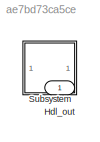
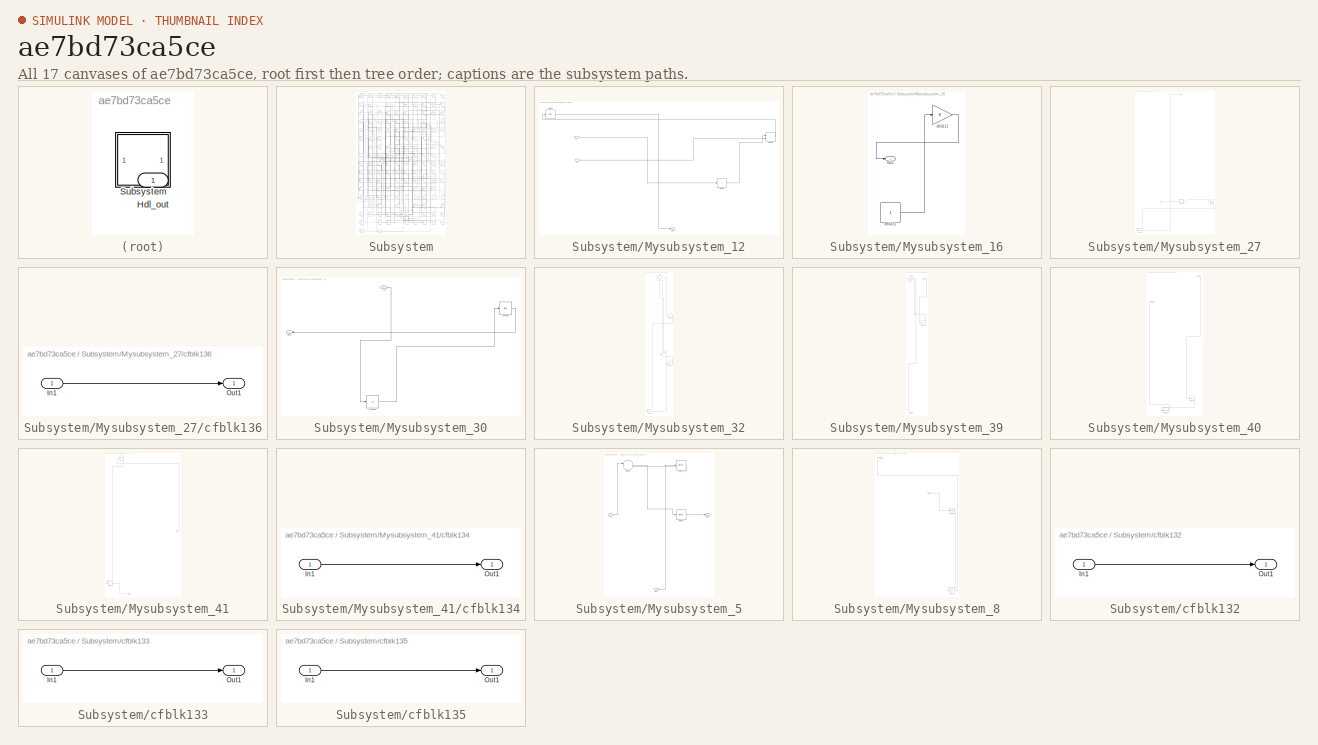
[diagram: thumbnail index - all 17 canvases of the model, root first then tree order]
MODEL slx_ae7bd73ca5ce
KIND model
CONFIG AbsTol = auto
CONFIG EnableMultiTasking = off
CONFIG FixedStep = auto
CONFIG MaxStep = auto
CONFIG MinStep = auto
CONFIG RelTol = 1e-3
CONFIG SampleTimeConstraint = Unconstrained
CONFIG SolverName = VariableStepAuto
CONFIG StartTime = 0.0
CONFIG StopTime = 10.0
BLOCK [Outport] Hdl_out
  OutDataTypeStr = uint8
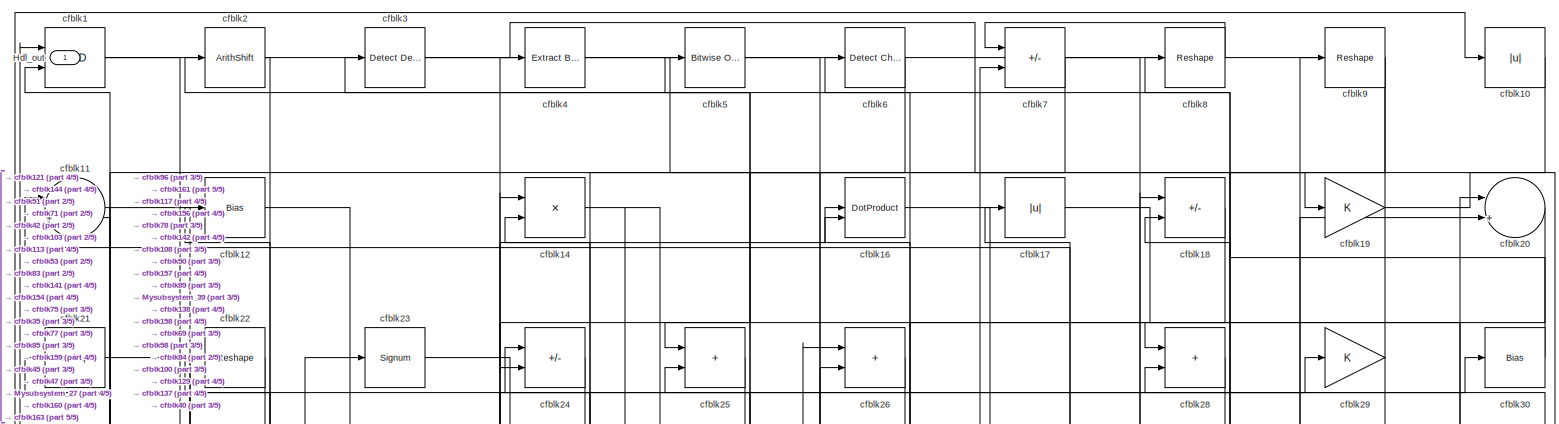
[diagram: Subsystem - part 1/5, full width, top band]
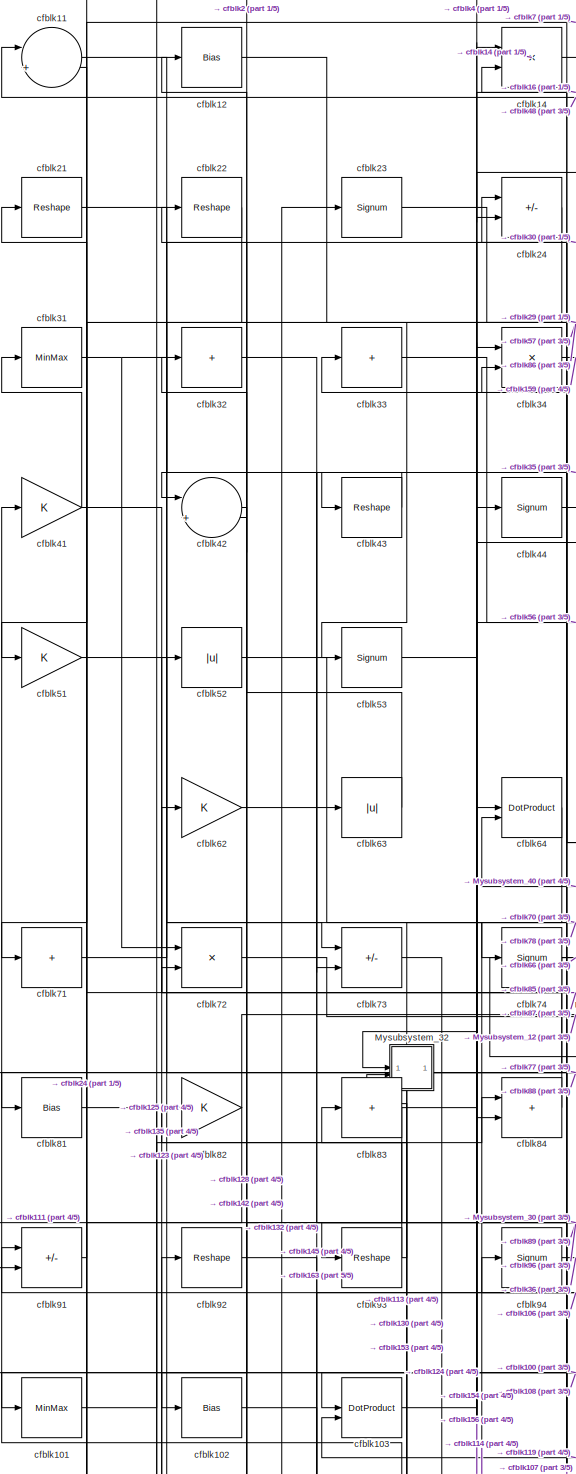
[diagram: Subsystem - part 2/5, middle left region]
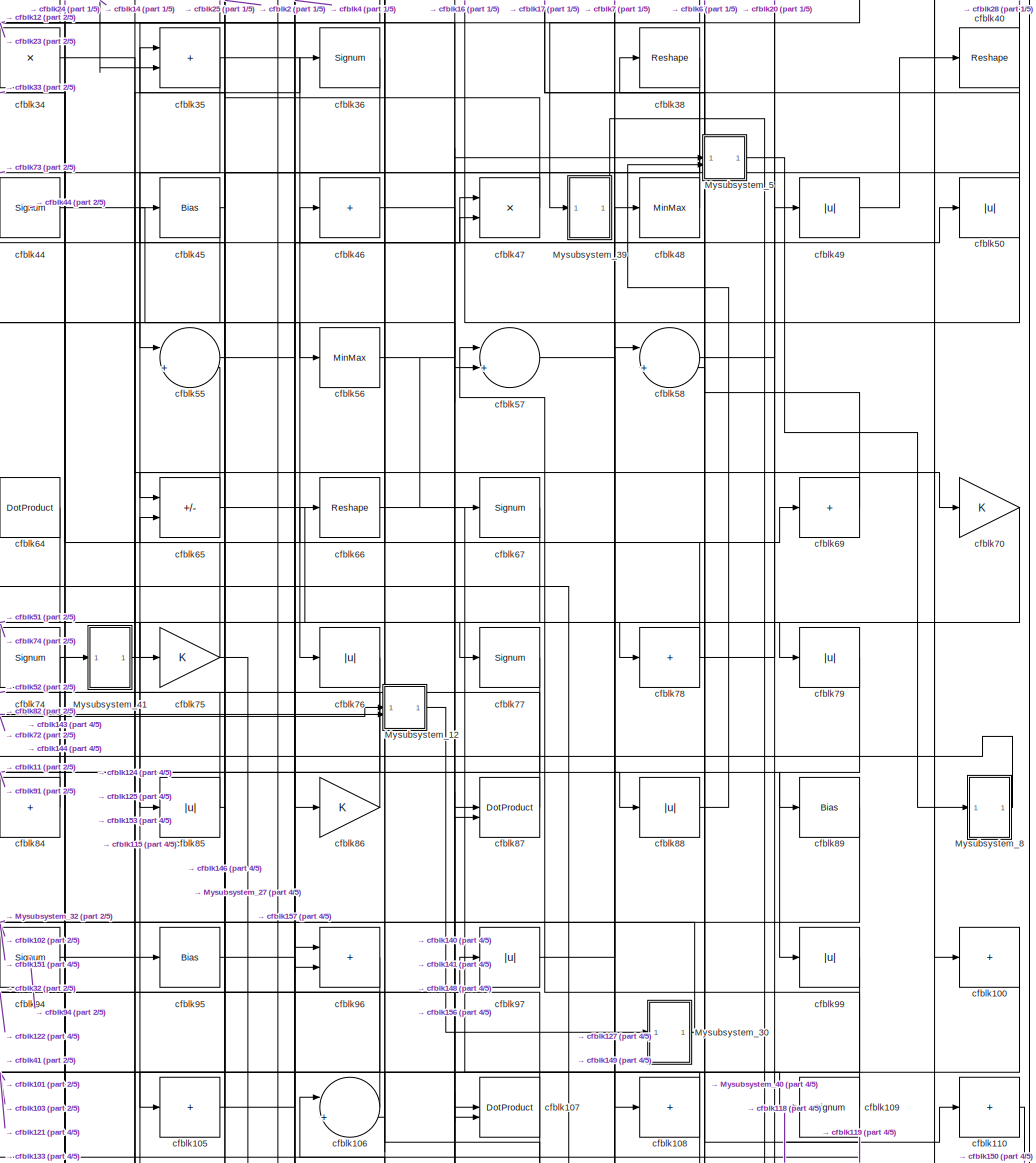
[diagram: Subsystem - part 3/5, central region]
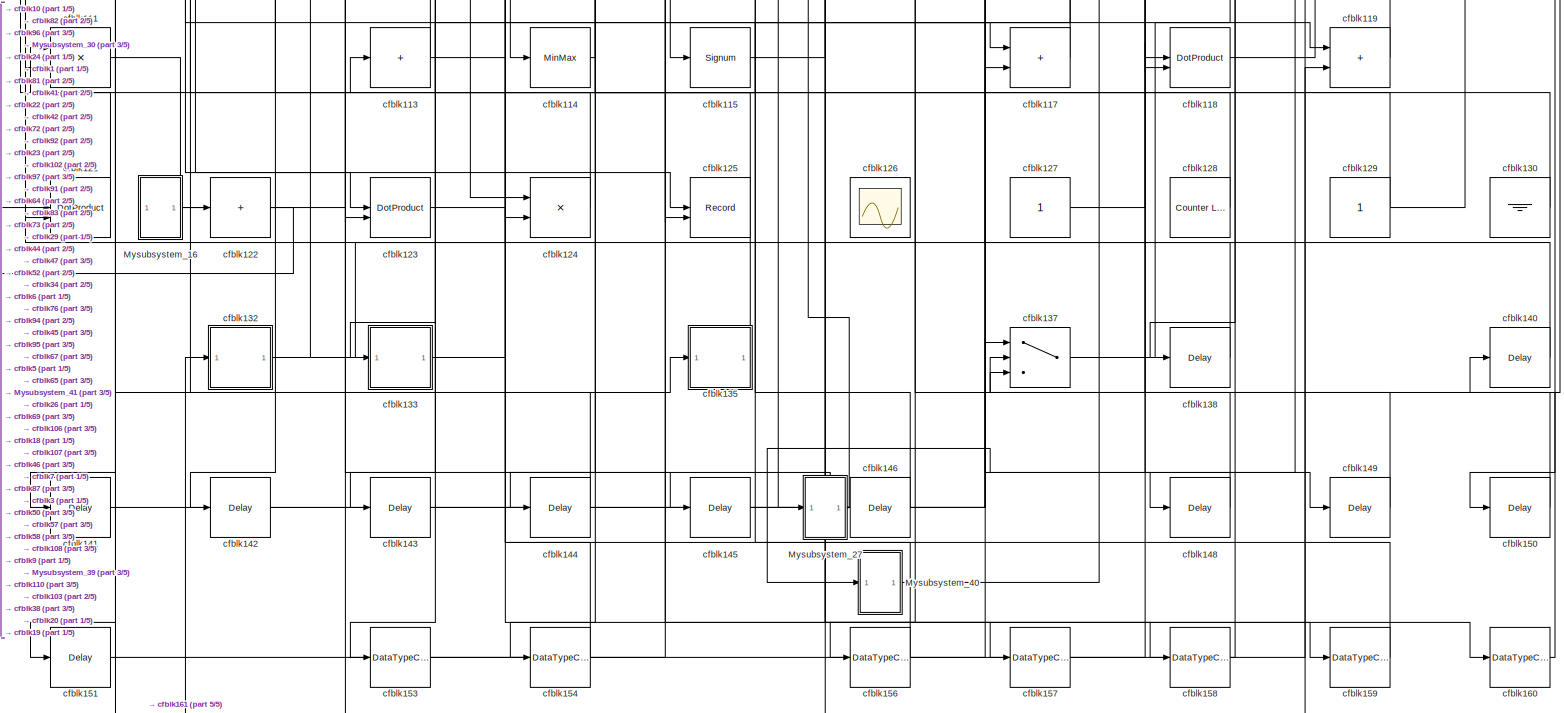
[diagram: Subsystem - part 4/5, full width, bottom band]
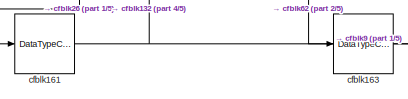
[diagram: Subsystem - part 5/5, bottom left region]
BLOCK [SubSystem] Subsystem
BLOCK [Outport] Subsystem/Hdl_out
  OutDataTypeStr = uint8
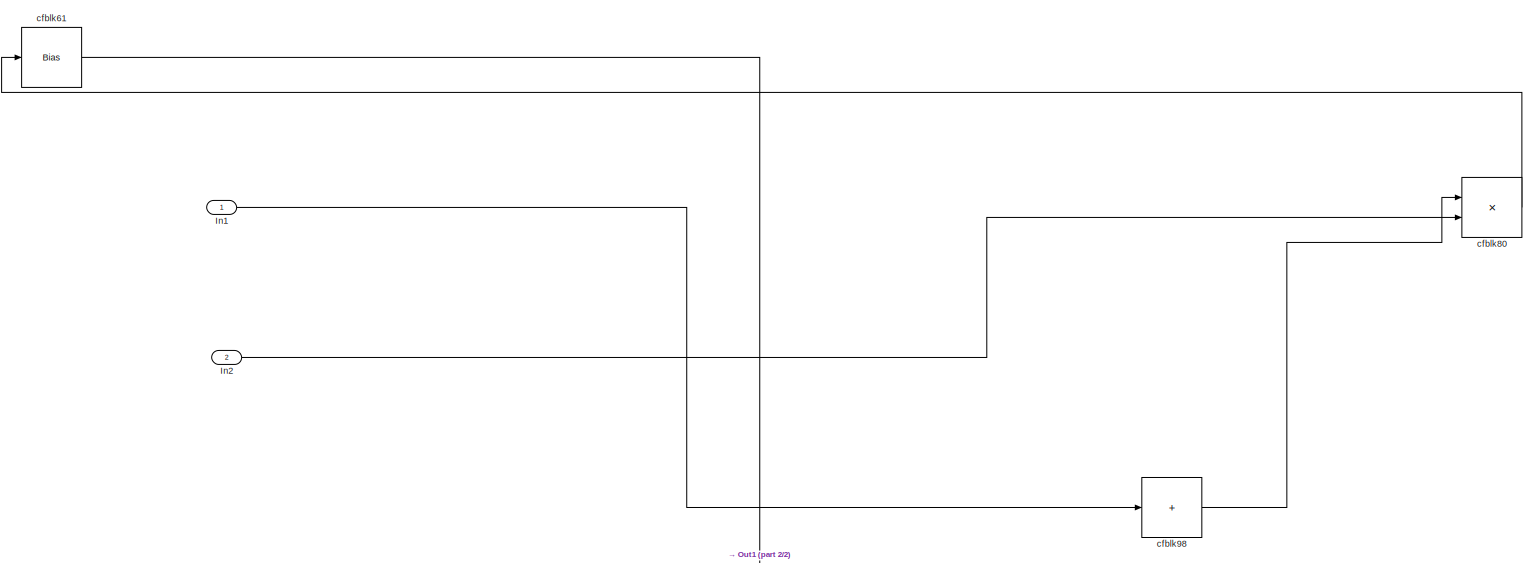
[diagram: Subsystem/Mysubsystem_12 - part 1/2, full width, middle band]
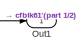
[diagram: Subsystem/Mysubsystem_12 - part 2/2, bottom center region]
BLOCK [SubSystem] Subsystem/Mysubsystem_12
  RTWFcnName = Mysubsystem_12
  RTWFcnNameOpts = User specified
  RTWFileNameOpts = Use function name
  RTWSystemCode = Reusable function
  TreatAsAtomicUnit = on
BLOCK [Inport] Subsystem/Mysubsystem_12/In1
BLOCK [Inport] Subsystem/Mysubsystem_12/In2
  Port = 2
BLOCK [Outport] Subsystem/Mysubsystem_12/Out1
BLOCK [Bias] Subsystem/Mysubsystem_12/cfblk61
  Bias = 0.0
  SaturateOnIntegerOverflow = off
BLOCK [Product] Subsystem/Mysubsystem_12/cfblk80
  Inputs = */
  RndMeth = Zero
  SaturateOnIntegerOverflow = on
BLOCK [Sum] Subsystem/Mysubsystem_12/cfblk98
  IconShape = rectangular
  Inputs = +
BLOCK [SubSystem] Subsystem/Mysubsystem_16
  RTWFcnName = Mysubsystem_16
  RTWFcnNameOpts = User specified
  RTWFileNameOpts = Use function name
  RTWSystemCode = Reusable function
  TreatAsAtomicUnit = on
BLOCK [Outport] Subsystem/Mysubsystem_16/Out1
BLOCK [Gain] Subsystem/Mysubsystem_16/cfblk112
BLOCK [Constant] Subsystem/Mysubsystem_16/cfblk131
  SampleTime = -1
BLOCK [SubSystem] Subsystem/Mysubsystem_27
  RTWFcnName = Mysubsystem_27
  RTWFcnNameOpts = User specified
  RTWFileNameOpts = Use function name
  RTWSystemCode = Reusable function
  TreatAsAtomicUnit = on
BLOCK [Inport] Subsystem/Mysubsystem_27/In1
BLOCK [Outport] Subsystem/Mysubsystem_27/Out1
BLOCK [SubSystem] Subsystem/Mysubsystem_27/cfblk136
  LibrarySourceBlock = hdlsllib/Ports &\nSubsystems/Subsystem
BLOCK [Inport] Subsystem/Mysubsystem_27/cfblk136/In1
BLOCK [Outport] Subsystem/Mysubsystem_27/cfblk136/Out1
BLOCK [Delay] Subsystem/Mysubsystem_27/cfblk139
  InputPortMap = u0
  SampleTime = 1
BLOCK [DataTypeConversion] Subsystem/Mysubsystem_27/cfblk162
  OutDataTypeStr = uint8
  RndMeth = Floor
  SaturateOnIntegerOverflow = off
BLOCK [SubSystem] Subsystem/Mysubsystem_30
  RTWFcnName = Mysubsystem_30
  RTWFcnNameOpts = User specified
  RTWFileNameOpts = Use function name
  RTWSystemCode = Reusable function
  TreatAsAtomicUnit = on
BLOCK [Inport] Subsystem/Mysubsystem_30/In1
BLOCK [Outport] Subsystem/Mysubsystem_30/Out1
BLOCK [Abs] Subsystem/Mysubsystem_30/cfblk116
  SaturateOnIntegerOverflow = off
BLOCK [Bias] Subsystem/Mysubsystem_30/cfblk90
  Bias = 0.0
  SaturateOnIntegerOverflow = off
BLOCK [SubSystem] Subsystem/Mysubsystem_32
  RTWFcnName = Mysubsystem_32
  RTWFcnNameOpts = User specified
  RTWFileNameOpts = Use function name
  RTWSystemCode = Reusable function
  TreatAsAtomicUnit = on
BLOCK [Inport] Subsystem/Mysubsystem_32/In1
BLOCK [Inport] Subsystem/Mysubsystem_32/In2
  Port = 2
BLOCK [Product] Subsystem/Mysubsystem_32/cfblk104
  Inputs = */
  RndMeth = Zero
  SaturateOnIntegerOverflow = on
BLOCK [Sum] Subsystem/Mysubsystem_32/cfblk13
  Inputs = |++
BLOCK [Delay] Subsystem/Mysubsystem_32/cfblk152
  InputPortMap = u0
  SampleTime = 1
BLOCK [Sum] Subsystem/Mysubsystem_32/cfblk54
  IconShape = rectangular
  Inputs = +
BLOCK [SubSystem] Subsystem/Mysubsystem_39
  RTWFcnName = Mysubsystem_39
  RTWFcnNameOpts = User specified
  RTWFileNameOpts = Use function name
  RTWSystemCode = Reusable function
  TreatAsAtomicUnit = on
BLOCK [Inport] Subsystem/Mysubsystem_39/In1
BLOCK [Outport] Subsystem/Mysubsystem_39/Out1
BLOCK [Gain] Subsystem/Mysubsystem_39/cfblk27
BLOCK [Abs] Subsystem/Mysubsystem_39/cfblk68
  SaturateOnIntegerOverflow = off
BLOCK [SubSystem] Subsystem/Mysubsystem_40
  RTWFcnName = Mysubsystem_40
  RTWFcnNameOpts = User specified
  RTWFileNameOpts = Use function name
  RTWSystemCode = Reusable function
  TreatAsAtomicUnit = on
BLOCK [Inport] Subsystem/Mysubsystem_40/In1
BLOCK [Outport] Subsystem/Mysubsystem_40/Out1
BLOCK [Delay] Subsystem/Mysubsystem_40/cfblk147
  InputPortMap = u0
  SampleTime = 1
BLOCK [DataTypeConversion] Subsystem/Mysubsystem_40/cfblk155
  OutDataTypeStr = uint8
  RndMeth = Floor
  SaturateOnIntegerOverflow = off
BLOCK [SubSystem] Subsystem/Mysubsystem_41
  RTWFcnName = Mysubsystem_41
  RTWFcnNameOpts = User specified
  RTWFileNameOpts = Use function name
  RTWSystemCode = Reusable function
  TreatAsAtomicUnit = on
BLOCK [Inport] Subsystem/Mysubsystem_41/In1
BLOCK [Outport] Subsystem/Mysubsystem_41/Out1
BLOCK [SubSystem] Subsystem/Mysubsystem_41/cfblk134
  LibrarySourceBlock = hdlsllib/Ports &\nSubsystems/Subsystem
BLOCK [Inport] Subsystem/Mysubsystem_41/cfblk134/In1
BLOCK [Outport] Subsystem/Mysubsystem_41/cfblk134/Out1
BLOCK [Signum] Subsystem/Mysubsystem_41/cfblk15
BLOCK [SubSystem] Subsystem/Mysubsystem_5
  RTWFcnName = Mysubsystem_5
  RTWFcnNameOpts = User specified
  RTWFileNameOpts = Use function name
  RTWSystemCode = Reusable function
  TreatAsAtomicUnit = on
BLOCK [Inport] Subsystem/Mysubsystem_5/In1
BLOCK [Inport] Subsystem/Mysubsystem_5/In2
  Port = 2
BLOCK [Outport] Subsystem/Mysubsystem_5/Out1
BLOCK [Sum] Subsystem/Mysubsystem_5/cfblk37
  Inputs = |++
BLOCK [Signum] Subsystem/Mysubsystem_5/cfblk39
BLOCK [MinMax] Subsystem/Mysubsystem_5/cfblk59
BLOCK [SubSystem] Subsystem/Mysubsystem_8
  RTWFcnName = Mysubsystem_8
  RTWFcnNameOpts = User specified
  RTWFileNameOpts = Use function name
  RTWSystemCode = Reusable function
  TreatAsAtomicUnit = on
BLOCK [Inport] Subsystem/Mysubsystem_8/In1
BLOCK [Outport] Subsystem/Mysubsystem_8/Out1
BLOCK [Abs] Subsystem/Mysubsystem_8/cfblk120
  SaturateOnIntegerOverflow = off
BLOCK [MinMax] Subsystem/Mysubsystem_8/cfblk60
BLOCK [Logic] Subsystem/cfblk1
  AllPortsSameDT = off
  OutDataTypeStr = boolean
BLOCK [Abs] Subsystem/cfblk10
  OutDataTypeStr = uint8
  SaturateOnIntegerOverflow = off
BLOCK [Sum] Subsystem/cfblk100
  IconShape = rectangular
  Inputs = +
  OutDataTypeStr = uint8
BLOCK [MinMax] Subsystem/cfblk101
  OutDataTypeStr = uint8
BLOCK [Bias] Subsystem/cfblk102
  Bias = 0.0
  SaturateOnIntegerOverflow = off
BLOCK [DotProduct] Subsystem/cfblk103
  OutDataTypeStr = uint8
BLOCK [Sum] Subsystem/cfblk105
  IconShape = rectangular
  Inputs = +
  OutDataTypeStr = uint8
BLOCK [Sum] Subsystem/cfblk106
  Inputs = |++
  OutDataTypeStr = uint8
BLOCK [DotProduct] Subsystem/cfblk107
  OutDataTypeStr = uint8
BLOCK [Sum] Subsystem/cfblk108
  IconShape = rectangular
  Inputs = +
  OutDataTypeStr = uint8
BLOCK [Signum] Subsystem/cfblk109
BLOCK [Sum] Subsystem/cfblk11
  Inputs = |++
  OutDataTypeStr = uint8
BLOCK [Sum] Subsystem/cfblk110
  IconShape = rectangular
  Inputs = +
  OutDataTypeStr = uint8
BLOCK [Product] Subsystem/cfblk111
  Inputs = */
  OutDataTypeStr = uint8
  RndMeth = Zero
  SaturateOnIntegerOverflow = on
BLOCK [Sum] Subsystem/cfblk113
  IconShape = rectangular
  Inputs = +
  OutDataTypeStr = uint8
BLOCK [MinMax] Subsystem/cfblk114
  OutDataTypeStr = uint8
BLOCK [Signum] Subsystem/cfblk115
BLOCK [Sum] Subsystem/cfblk117
  IconShape = rectangular
  OutDataTypeStr = uint8
BLOCK [DotProduct] Subsystem/cfblk118
  OutDataTypeStr = uint8
BLOCK [Sum] Subsystem/cfblk119
  IconShape = rectangular
  OutDataTypeStr = uint8
BLOCK [Bias] Subsystem/cfblk12
  Bias = 0.0
  SaturateOnIntegerOverflow = off
BLOCK [DotProduct] Subsystem/cfblk121
  OutDataTypeStr = uint8
BLOCK [Sum] Subsystem/cfblk122
  IconShape = rectangular
  Inputs = +
  OutDataTypeStr = uint8
BLOCK [DotProduct] Subsystem/cfblk123
  OutDataTypeStr = uint8
BLOCK [Product] Subsystem/cfblk124
  Inputs = */
  OutDataTypeStr = uint8
  RndMeth = Zero
  SaturateOnIntegerOverflow = on
BLOCK [Record] Subsystem/cfblk125
  CompatibilityTag = XY
  FileSettingsInternal = {"entries":[{"content":{"excelSettings":{"content":{},"type":"Streamout.ExcelSettings"}},"type":"Streamout.FileSettingStorage","uuid":""}],"packageUris":["http:\/\/schema.mathworks.com\/mf0\/streamout_blocks\/R2020a"],"version":"1.0"}
  Layout = [1 1]
  SignalsInternal = {"entries":[{"content":{"signals":[{"content":{"blockPath":[],"dimensions":[1],"domain":"","lineColor":"#a2142f","plots":[1],"port":1,"signalID":36454,"signalName":"cfblk81"},"type":"RecordBlkView.Signal","uuid":""},{"content":{"blockPath":[],"dimensions":[1],"domain":"","lineColor":"#139fff","plots":[1],"port":2,"signalID":36457,"signalName":"cfblk45"},"type":"RecordBlkView.Signal","uuid":""}]},"...<+142ch>
  VisualizationBindings = {"xyplotplugin":{"info":[{"series":[{"bindingParametersList":[{"parameter":"X-Axis","signalID":36454,"signalName":"cfblk81"},{"parameter":"Y-Axis","signalID":36457,"signalName":"cfblk45"}],"seriesID":2030}],"subplotID":1}]}}
  st = -1
BLOCK [Scope] Subsystem/cfblk126
  Floating = on
  NumInputPorts = 1
  ScopeSpecificationString = Simulink.scopes.TimeScopeBlockCfg('CurrentConfiguration', extmgr.ConfigurationSet(extmgr.Configuration('Core','General UI',true,'FigureColor',[0.156862745098039 0.156862745098039 0.156862745098039]),extmgr.Configuration('Core','Source UI',true),extmgr.Configuration('Sources','WiredSimulink',true,'DataLoggingSaveFormat','StructureWithTime','DataLoggingLimitDataPoints',true,'DataLoggingDecimation','...<+2674ch>
BLOCK [Constant] Subsystem/cfblk127
  OutDataTypeStr = uint8
  SampleTime = -1
BLOCK [Reference] Subsystem/cfblk128  REF=hdlsllib/Sources/Counter
Limited
  SourceBlock = hdlsllib/Sources/Counter\nLimited
  SourceType = Counter Limited
BLOCK [Constant] Subsystem/cfblk129
  OutDataTypeStr = uint8
  SampleTime = -1
BLOCK [Ground] Subsystem/cfblk130
BLOCK [SubSystem] Subsystem/cfblk132
  LibrarySourceBlock = hdlsllib/Ports &\nSubsystems/Subsystem
BLOCK [Inport] Subsystem/cfblk132/In1
BLOCK [Outport] Subsystem/cfblk132/Out1
BLOCK [SubSystem] Subsystem/cfblk133
  LibrarySourceBlock = hdlsllib/Ports &\nSubsystems/Subsystem
BLOCK [Inport] Subsystem/cfblk133/In1
BLOCK [Outport] Subsystem/cfblk133/Out1
BLOCK [SubSystem] Subsystem/cfblk135
  LibrarySourceBlock = hdlsllib/Ports &\nSubsystems/Subsystem
BLOCK [Inport] Subsystem/cfblk135/In1
BLOCK [Outport] Subsystem/cfblk135/Out1
BLOCK [Switch] Subsystem/cfblk137
  InputSameDT = off
  OutDataTypeStr = uint8
  SaturateOnIntegerOverflow = off
BLOCK [Delay] Subsystem/cfblk138
  InputPortMap = u0
  SampleTime = 1
BLOCK [Product] Subsystem/cfblk14
  Inputs = */
  OutDataTypeStr = uint8
  RndMeth = Zero
  SaturateOnIntegerOverflow = on
BLOCK [Delay] Subsystem/cfblk140
  InputPortMap = u0
  SampleTime = 1
BLOCK [Delay] Subsystem/cfblk141
  InputPortMap = u0
  SampleTime = 1
BLOCK [Delay] Subsystem/cfblk142
  InputPortMap = u0
  SampleTime = 1
BLOCK [Delay] Subsystem/cfblk143
  InputPortMap = u0
  SampleTime = 1
BLOCK [Delay] Subsystem/cfblk144
  InputPortMap = u0
  SampleTime = 1
BLOCK [Delay] Subsystem/cfblk145
  InputPortMap = u0
  SampleTime = 1
BLOCK [Delay] Subsystem/cfblk146
  InputPortMap = u0
  SampleTime = 1
BLOCK [Delay] Subsystem/cfblk148
  InputPortMap = u0
  SampleTime = 1
BLOCK [Delay] Subsystem/cfblk149
  InputPortMap = u0
  SampleTime = 1
BLOCK [Delay] Subsystem/cfblk150
  InputPortMap = u0
  SampleTime = 1
BLOCK [Delay] Subsystem/cfblk151
  InputPortMap = u0
  SampleTime = 1
BLOCK [DataTypeConversion] Subsystem/cfblk153
  OutDataTypeStr = uint8
  RndMeth = Floor
  SaturateOnIntegerOverflow = off
BLOCK [DataTypeConversion] Subsystem/cfblk154
  OutDataTypeStr = uint8
  RndMeth = Floor
  SaturateOnIntegerOverflow = off
BLOCK [DataTypeConversion] Subsystem/cfblk156
  OutDataTypeStr = uint8
  RndMeth = Floor
  SaturateOnIntegerOverflow = off
BLOCK [DataTypeConversion] Subsystem/cfblk157
  OutDataTypeStr = uint8
  RndMeth = Floor
  SaturateOnIntegerOverflow = off
BLOCK [DataTypeConversion] Subsystem/cfblk158
  OutDataTypeStr = uint8
  RndMeth = Floor
  SaturateOnIntegerOverflow = off
BLOCK [DataTypeConversion] Subsystem/cfblk159
  OutDataTypeStr = uint8
  RndMeth = Floor
  SaturateOnIntegerOverflow = off
BLOCK [DotProduct] Subsystem/cfblk16
  OutDataTypeStr = uint8
BLOCK [DataTypeConversion] Subsystem/cfblk160
  OutDataTypeStr = uint8
  RndMeth = Floor
  SaturateOnIntegerOverflow = off
BLOCK [DataTypeConversion] Subsystem/cfblk161
  OutDataTypeStr = uint8
  RndMeth = Floor
  SaturateOnIntegerOverflow = off
BLOCK [DataTypeConversion] Subsystem/cfblk163
  OutDataTypeStr = uint8
  RndMeth = Floor
  SaturateOnIntegerOverflow = off
BLOCK [Abs] Subsystem/cfblk17
  OutDataTypeStr = uint8
  SaturateOnIntegerOverflow = off
BLOCK [Sum] Subsystem/cfblk18
  IconShape = rectangular
  Inputs = +-
  OutDataTypeStr = uint8
BLOCK [Gain] Subsystem/cfblk19
  OutDataTypeStr = uint8
BLOCK [ArithShift] Subsystem/cfblk2
  BitShiftNumber = 8
  InputPortMap = u0
BLOCK [Sum] Subsystem/cfblk20
  Inputs = |++
  OutDataTypeStr = uint8
BLOCK [Reshape] Subsystem/cfblk21
BLOCK [Reshape] Subsystem/cfblk22
BLOCK [Signum] Subsystem/cfblk23
BLOCK [Sum] Subsystem/cfblk24
  IconShape = rectangular
  Inputs = +-
  OutDataTypeStr = uint8
BLOCK [Sum] Subsystem/cfblk25
  IconShape = rectangular
  OutDataTypeStr = uint8
BLOCK [Sum] Subsystem/cfblk26
  IconShape = rectangular
  OutDataTypeStr = uint8
BLOCK [Sum] Subsystem/cfblk28
  IconShape = rectangular
  OutDataTypeStr = uint8
BLOCK [Gain] Subsystem/cfblk29
  OutDataTypeStr = uint8
BLOCK [Reference] Subsystem/cfblk3  REF=simulink/Logic and Bit
Operations/Detect
Decrease
  LibrarySourceBlock = hdlsllib/Logic and Bit\nOperations/Detect\nDecrease
  SourceBlock = simulink/Logic and Bit\nOperations/Detect\nDecrease
  SourceType = Detect Decrease
BLOCK [Bias] Subsystem/cfblk30
  Bias = 0.0
  SaturateOnIntegerOverflow = off
BLOCK [MinMax] Subsystem/cfblk31
  OutDataTypeStr = uint8
BLOCK [Sum] Subsystem/cfblk32
  IconShape = rectangular
  Inputs = +
  OutDataTypeStr = uint8
BLOCK [Sum] Subsystem/cfblk33
  IconShape = rectangular
  Inputs = +
  OutDataTypeStr = uint8
BLOCK [Product] Subsystem/cfblk34
  Inputs = */
  OutDataTypeStr = uint8
  RndMeth = Zero
  SaturateOnIntegerOverflow = on
BLOCK [Sum] Subsystem/cfblk35
  IconShape = rectangular
  OutDataTypeStr = uint8
BLOCK [Signum] Subsystem/cfblk36
BLOCK [Reshape] Subsystem/cfblk38
BLOCK [Reference] Subsystem/cfblk4  REF=simulink/Logic and Bit
Operations/Extract Bits
  LibrarySourceBlock = hdlsllib/Logic and Bit\nOperations/Extract Bits
  SourceBlock = simulink/Logic and Bit\nOperations/Extract Bits
  SourceType = Extract Bits
BLOCK [Reshape] Subsystem/cfblk40
BLOCK [Gain] Subsystem/cfblk41
  OutDataTypeStr = uint8
BLOCK [Sum] Subsystem/cfblk42
  Inputs = |++
  OutDataTypeStr = uint8
BLOCK [Reshape] Subsystem/cfblk43
BLOCK [Signum] Subsystem/cfblk44
BLOCK [Bias] Subsystem/cfblk45
  Bias = 0.0
  SaturateOnIntegerOverflow = off
BLOCK [Sum] Subsystem/cfblk46
  IconShape = rectangular
  Inputs = +
  OutDataTypeStr = uint8
BLOCK [Product] Subsystem/cfblk47
  Inputs = */
  OutDataTypeStr = uint8
  RndMeth = Zero
  SaturateOnIntegerOverflow = on
BLOCK [MinMax] Subsystem/cfblk48
  OutDataTypeStr = uint8
BLOCK [Abs] Subsystem/cfblk49
  OutDataTypeStr = uint8
  SaturateOnIntegerOverflow = off
BLOCK [Reference] Subsystem/cfblk5  REF=simulink/Logic and Bit
Operations/Bitwise
Operator
  LibrarySourceBlock = hdlsllib/Logic and Bit\nOperations/Bitwise\nOperator
  SourceBlock = simulink/Logic and Bit\nOperations/Bitwise\nOperator
  SourceType = Bitwise Operator
BLOCK [Abs] Subsystem/cfblk50
  OutDataTypeStr = uint8
  SaturateOnIntegerOverflow = off
BLOCK [Gain] Subsystem/cfblk51
  OutDataTypeStr = uint8
BLOCK [Abs] Subsystem/cfblk52
  OutDataTypeStr = uint8
  SaturateOnIntegerOverflow = off
BLOCK [Signum] Subsystem/cfblk53
BLOCK [Sum] Subsystem/cfblk55
  Inputs = |++
  OutDataTypeStr = uint8
BLOCK [MinMax] Subsystem/cfblk56
  OutDataTypeStr = uint8
BLOCK [Sum] Subsystem/cfblk57
  Inputs = |++
  OutDataTypeStr = uint8
BLOCK [Sum] Subsystem/cfblk58
  Inputs = |++
  OutDataTypeStr = uint8
BLOCK [Reference] Subsystem/cfblk6  REF=simulink/Logic and Bit
Operations/Detect
Change
  LibrarySourceBlock = hdlsllib/Logic and Bit\nOperations/Detect\nChange
  SourceBlock = simulink/Logic and Bit\nOperations/Detect\nChange
  SourceType = Detect Change
BLOCK [Gain] Subsystem/cfblk62
  OutDataTypeStr = uint8
BLOCK [Abs] Subsystem/cfblk63
  OutDataTypeStr = uint8
  SaturateOnIntegerOverflow = off
BLOCK [DotProduct] Subsystem/cfblk64
  OutDataTypeStr = uint8
BLOCK [Sum] Subsystem/cfblk65
  IconShape = rectangular
  Inputs = +-
  OutDataTypeStr = uint8
BLOCK [Reshape] Subsystem/cfblk66
BLOCK [Signum] Subsystem/cfblk67
BLOCK [Sum] Subsystem/cfblk69
  IconShape = rectangular
  Inputs = +
  OutDataTypeStr = uint8
BLOCK [Sum] Subsystem/cfblk7
  IconShape = rectangular
  Inputs = +-
  OutDataTypeStr = uint8
BLOCK [Gain] Subsystem/cfblk70
  OutDataTypeStr = uint8
BLOCK [Sum] Subsystem/cfblk71
  IconShape = rectangular
  Inputs = +
  OutDataTypeStr = uint8
BLOCK [Product] Subsystem/cfblk72
  Inputs = */
  OutDataTypeStr = uint8
  RndMeth = Zero
  SaturateOnIntegerOverflow = on
BLOCK [Sum] Subsystem/cfblk73
  IconShape = rectangular
  Inputs = +-
  OutDataTypeStr = uint8
BLOCK [Signum] Subsystem/cfblk74
BLOCK [Gain] Subsystem/cfblk75
  OutDataTypeStr = uint8
BLOCK [Abs] Subsystem/cfblk76
  OutDataTypeStr = uint8
  SaturateOnIntegerOverflow = off
BLOCK [Signum] Subsystem/cfblk77
BLOCK [Sum] Subsystem/cfblk78
  IconShape = rectangular
  Inputs = +
  OutDataTypeStr = uint8
BLOCK [Abs] Subsystem/cfblk79
  OutDataTypeStr = uint8
  SaturateOnIntegerOverflow = off
BLOCK [Reshape] Subsystem/cfblk8
BLOCK [Bias] Subsystem/cfblk81
  Bias = 0.0
  SaturateOnIntegerOverflow = off
BLOCK [Gain] Subsystem/cfblk82
  OutDataTypeStr = uint8
BLOCK [Sum] Subsystem/cfblk83
  IconShape = rectangular
  Inputs = +
  OutDataTypeStr = uint8
BLOCK [Sum] Subsystem/cfblk84
  IconShape = rectangular
  OutDataTypeStr = uint8
BLOCK [Abs] Subsystem/cfblk85
  OutDataTypeStr = uint8
  SaturateOnIntegerOverflow = off
BLOCK [Gain] Subsystem/cfblk86
  OutDataTypeStr = uint8
BLOCK [DotProduct] Subsystem/cfblk87
  OutDataTypeStr = uint8
BLOCK [Abs] Subsystem/cfblk88
  OutDataTypeStr = uint8
  SaturateOnIntegerOverflow = off
BLOCK [Bias] Subsystem/cfblk89
  Bias = 0.0
  SaturateOnIntegerOverflow = off
BLOCK [Reshape] Subsystem/cfblk9
BLOCK [Sum] Subsystem/cfblk91
  IconShape = rectangular
  Inputs = +-
  OutDataTypeStr = uint8
BLOCK [Reshape] Subsystem/cfblk92
BLOCK [Reshape] Subsystem/cfblk93
BLOCK [Signum] Subsystem/cfblk94
BLOCK [Bias] Subsystem/cfblk95
  Bias = 0.0
  SaturateOnIntegerOverflow = off
BLOCK [Sum] Subsystem/cfblk96
  IconShape = rectangular
  OutDataTypeStr = uint8
BLOCK [Abs] Subsystem/cfblk97
  OutDataTypeStr = uint8
  SaturateOnIntegerOverflow = off
BLOCK [Abs] Subsystem/cfblk99
  OutDataTypeStr = uint8
  SaturateOnIntegerOverflow = off
LINE Subsystem/Mysubsystem_12/In1:1 -> Subsystem/Mysubsystem_12/cfblk98:1
LINE Subsystem/Mysubsystem_12/In2:1 -> Subsystem/Mysubsystem_12/cfblk80:2
LINE Subsystem/Mysubsystem_12/cfblk61:1 -> Subsystem/Mysubsystem_12/Out1:1
LINE Subsystem/Mysubsystem_12/cfblk80:1 -> Subsystem/Mysubsystem_12/cfblk61:1
LINE Subsystem/Mysubsystem_12/cfblk98:1 -> Subsystem/Mysubsystem_12/cfblk80:1
LINE Subsystem/Mysubsystem_12:1 -> Subsystem/Mysubsystem_30:1
LINE Subsystem/Mysubsystem_16/cfblk112:1 -> Subsystem/Mysubsystem_16/Out1:1
LINE Subsystem/Mysubsystem_16/cfblk131:1 -> Subsystem/Mysubsystem_16/cfblk112:1
LINE Subsystem/Mysubsystem_16:1 -> Subsystem/cfblk121:1
LINE Subsystem/Mysubsystem_27/In1:1 -> Subsystem/Mysubsystem_27/cfblk136:1
LINE Subsystem/Mysubsystem_27/cfblk136/In1:1 -> Subsystem/Mysubsystem_27/cfblk136/Out1:1
LINE Subsystem/Mysubsystem_27/cfblk136:1 -> Subsystem/Mysubsystem_27/cfblk139:1
LINE Subsystem/Mysubsystem_27/cfblk139:1 -> Subsystem/Mysubsystem_27/cfblk162:1
LINE Subsystem/Mysubsystem_27/cfblk162:1 -> Subsystem/Mysubsystem_27/Out1:1
LINE Subsystem/Mysubsystem_27:1 -> Subsystem/cfblk26:1
LINE Subsystem/Mysubsystem_30/In1:1 -> Subsystem/Mysubsystem_30/cfblk116:1
LINE Subsystem/Mysubsystem_30/cfblk116:1 -> Subsystem/Mysubsystem_30/cfblk90:1
LINE Subsystem/Mysubsystem_30/cfblk90:1 -> Subsystem/Mysubsystem_30/Out1:1
NET Subsystem/Mysubsystem_30:1 -> Subsystem/Mysubsystem_32:1, Subsystem/cfblk151:1
LINE Subsystem/Mysubsystem_32/In1:1 -> Subsystem/Mysubsystem_32/cfblk104:2
LINE Subsystem/Mysubsystem_32/In2:1 -> Subsystem/Mysubsystem_32/cfblk13:2
LINE Subsystem/Mysubsystem_32/cfblk104:1 -> Subsystem/Mysubsystem_32/cfblk13:1
LINE Subsystem/Mysubsystem_32/cfblk13:1 -> Subsystem/Mysubsystem_32/cfblk54:1
LINE Subsystem/Mysubsystem_32/cfblk152:1 -> Subsystem/Mysubsystem_32/cfblk104:1
LINE Subsystem/Mysubsystem_32/cfblk54:1 -> Subsystem/Mysubsystem_32/cfblk152:1
LINE Subsystem/Mysubsystem_39/In1:1 -> Subsystem/Mysubsystem_39/cfblk68:1
LINE Subsystem/Mysubsystem_39/cfblk27:1 -> Subsystem/Mysubsystem_39/Out1:1
LINE Subsystem/Mysubsystem_39/cfblk68:1 -> Subsystem/Mysubsystem_39/cfblk27:1
LINE Subsystem/Mysubsystem_39:1 -> Subsystem/Mysubsystem_40:1
LINE Subsystem/Mysubsystem_40/In1:1 -> Subsystem/Mysubsystem_40/cfblk147:1
LINE Subsystem/Mysubsystem_40/cfblk147:1 -> Subsystem/Mysubsystem_40/cfblk155:1
LINE Subsystem/Mysubsystem_40/cfblk155:1 -> Subsystem/Mysubsystem_40/Out1:1
LINE Subsystem/Mysubsystem_40:1 -> Subsystem/cfblk64:2
LINE Subsystem/Mysubsystem_41/In1:1 -> Subsystem/Mysubsystem_41/cfblk15:1
LINE Subsystem/Mysubsystem_41/cfblk134/In1:1 -> Subsystem/Mysubsystem_41/cfblk134/Out1:1
LINE Subsystem/Mysubsystem_41/cfblk134:1 -> Subsystem/Mysubsystem_41/Out1:1
LINE Subsystem/Mysubsystem_41/cfblk15:1 -> Subsystem/Mysubsystem_41/cfblk134:1
LINE Subsystem/Mysubsystem_41:1 -> Subsystem/Mysubsystem_27:1
LINE Subsystem/Mysubsystem_5/In1:1 -> Subsystem/Mysubsystem_5/cfblk37:1
LINE Subsystem/Mysubsystem_5/In2:1 -> Subsystem/Mysubsystem_5/cfblk39:1
LINE Subsystem/Mysubsystem_5/cfblk37:1 -> Subsystem/Mysubsystem_5/cfblk59:1
LINE Subsystem/Mysubsystem_5/cfblk39:1 -> Subsystem/Mysubsystem_5/cfblk37:2
LINE Subsystem/Mysubsystem_5/cfblk59:1 -> Subsystem/Mysubsystem_5/Out1:1
LINE Subsystem/Mysubsystem_5:1 -> Subsystem/Mysubsystem_8:1
LINE Subsystem/Mysubsystem_8/In1:1 -> Subsystem/Mysubsystem_8/cfblk60:1
LINE Subsystem/Mysubsystem_8/cfblk120:1 -> Subsystem/Mysubsystem_8/Out1:1
LINE Subsystem/Mysubsystem_8/cfblk60:1 -> Subsystem/Mysubsystem_8/cfblk120:1
LINE Subsystem/Mysubsystem_8:1 -> Subsystem/Mysubsystem_41:1
LINE Subsystem/cfblk100:1 -> Subsystem/cfblk101:1
LINE Subsystem/cfblk101:1 -> Subsystem/cfblk84:1
LINE Subsystem/cfblk102:1 -> Subsystem/cfblk123:2
LINE Subsystem/cfblk103:1 -> Subsystem/cfblk4:1
NET Subsystem/cfblk105:1 -> Subsystem/cfblk35:1, Subsystem/cfblk47:2
LINE Subsystem/cfblk106:1 -> Subsystem/cfblk41:1
NET Subsystem/cfblk107:1 -> Subsystem/cfblk33:1, Subsystem/cfblk45:1
NET Subsystem/cfblk108:1 -> Subsystem/cfblk103:1, Subsystem/cfblk133:1
NET Subsystem/cfblk109:1 -> Subsystem/cfblk57:1, Subsystem/cfblk58:2
LINE Subsystem/cfblk10:1 -> Subsystem/cfblk25:1
LINE Subsystem/cfblk110:1 -> Subsystem/cfblk150:1
LINE Subsystem/cfblk111:1 -> Subsystem/cfblk122:1
NET Subsystem/cfblk113:1 -> Subsystem/cfblk158:1, Subsystem/cfblk29:1, Subsystem/cfblk91:1
LINE Subsystem/cfblk114:1 -> Subsystem/cfblk34:2
LINE Subsystem/cfblk115:1 -> Subsystem/cfblk69:1
LINE Subsystem/cfblk117:1 -> Subsystem/cfblk3:1
LINE Subsystem/cfblk118:1 -> Subsystem/cfblk110:1
NET Subsystem/cfblk119:1 -> Subsystem/cfblk103:2, Subsystem/cfblk38:1
NET Subsystem/cfblk11:1 -> Subsystem/cfblk71:1, Subsystem/cfblk88:1
LINE Subsystem/cfblk121:1 -> Subsystem/cfblk10:1
LINE Subsystem/cfblk122:1 -> Subsystem/cfblk97:1
LINE Subsystem/cfblk123:1 -> Subsystem/cfblk146:1
NET Subsystem/cfblk124:1 -> Subsystem/cfblk22:1, Subsystem/cfblk92:1
LINE Subsystem/cfblk127:1 -> Subsystem/cfblk58:1
NET Subsystem/cfblk128:1 -> Subsystem/cfblk113:1, Subsystem/cfblk72:2
NET Subsystem/cfblk129:1 -> Subsystem/cfblk111:1, Subsystem/cfblk20:1
LINE Subsystem/cfblk12:1 -> Subsystem/cfblk57:2
LINE Subsystem/cfblk130:1 -> Subsystem/cfblk83:1
LINE Subsystem/cfblk132/In1:1 -> Subsystem/cfblk132/Out1:1
NET Subsystem/cfblk132:1 -> Subsystem/cfblk23:1, Subsystem/cfblk44:1
LINE Subsystem/cfblk133/In1:1 -> Subsystem/cfblk133/Out1:1
LINE Subsystem/cfblk133:1 -> Subsystem/cfblk47:1
LINE Subsystem/cfblk135/In1:1 -> Subsystem/cfblk135/Out1:1
LINE Subsystem/cfblk135:1 -> Subsystem/cfblk94:1
LINE Subsystem/cfblk137:1 -> Subsystem/cfblk119:1
LINE Subsystem/cfblk138:1 -> Subsystem/cfblk1:1
LINE Subsystem/cfblk140:1 -> Subsystem/cfblk107:1
LINE Subsystem/cfblk141:1 -> Subsystem/cfblk87:1
LINE Subsystem/cfblk142:1 -> Subsystem/cfblk7:2
LINE Subsystem/cfblk143:1 -> Subsystem/cfblk117:2
LINE Subsystem/cfblk144:1 -> Subsystem/cfblk1:2
LINE Subsystem/cfblk145:1 -> Subsystem/cfblk137:1
LINE Subsystem/cfblk146:1 -> Subsystem/cfblk65:2
LINE Subsystem/cfblk148:1 -> Subsystem/cfblk137:3
LINE Subsystem/cfblk149:1 -> Subsystem/cfblk106:1
NET Subsystem/cfblk14:1 -> Subsystem/cfblk35:2, Subsystem/cfblk77:1
LINE Subsystem/cfblk150:1 -> Subsystem/cfblk118:1
LINE Subsystem/cfblk151:1 -> Subsystem/cfblk119:2
LINE Subsystem/cfblk153:1 -> Subsystem/cfblk95:1
LINE Subsystem/cfblk154:1 -> Subsystem/cfblk64:1
NET Subsystem/cfblk156:1 -> Subsystem/cfblk34:1, Subsystem/cfblk87:2
LINE Subsystem/cfblk157:1 -> Subsystem/cfblk18:1
LINE Subsystem/cfblk158:1 -> Subsystem/cfblk18:2
LINE Subsystem/cfblk159:1 -> Subsystem/cfblk5:1
LINE Subsystem/cfblk160:1 -> Subsystem/cfblk140:1
NET Subsystem/cfblk161:1 -> Subsystem/cfblk132:1, Subsystem/cfblk9:1
LINE Subsystem/cfblk163:1 -> Subsystem/cfblk26:2
LINE Subsystem/cfblk16:1 -> Subsystem/cfblk108:1
LINE Subsystem/cfblk17:1 -> Subsystem/cfblk100:1
LINE Subsystem/cfblk18:1 -> Subsystem/cfblk156:1
LINE Subsystem/cfblk19:1 -> Subsystem/cfblk137:2
LINE Subsystem/cfblk1:1 -> Subsystem/cfblk117:1
NET Subsystem/cfblk20:1 -> Subsystem/cfblk24:2, Subsystem/cfblk28:1
LINE Subsystem/cfblk21:1 -> Subsystem/cfblk43:1
LINE Subsystem/cfblk22:1 -> Subsystem/cfblk123:1
LINE Subsystem/cfblk23:1 -> Subsystem/cfblk86:1
NET Subsystem/cfblk24:1 -> Subsystem/cfblk141:1, Subsystem/cfblk53:1
LINE Subsystem/cfblk25:1 -> Subsystem/cfblk85:1
LINE Subsystem/cfblk26:1 -> Subsystem/cfblk161:1
LINE Subsystem/cfblk28:1 -> Subsystem/Mysubsystem_39:1
NET Subsystem/cfblk29:1 -> Subsystem/Hdl_out:1, Subsystem/cfblk84:2
LINE Subsystem/cfblk2:1 -> Subsystem/cfblk42:2
LINE Subsystem/cfblk30:1 -> Subsystem/cfblk8:1
NET Subsystem/cfblk31:1 -> Subsystem/cfblk63:1, Subsystem/cfblk72:1
LINE Subsystem/cfblk32:1 -> Subsystem/cfblk96:2
LINE Subsystem/cfblk33:1 -> Subsystem/cfblk56:1
LINE Subsystem/cfblk34:1 -> Subsystem/cfblk159:1
NET Subsystem/cfblk35:1 -> Subsystem/cfblk73:2, Subsystem/cfblk76:1
LINE Subsystem/cfblk36:1 -> Subsystem/cfblk55:1
LINE Subsystem/cfblk38:1 -> Subsystem/cfblk65:1
LINE Subsystem/cfblk3:1 -> Subsystem/cfblk19:1
NET Subsystem/cfblk40:1 -> Subsystem/cfblk28:2, Subsystem/cfblk75:1
NET Subsystem/cfblk41:1 -> Subsystem/cfblk135:1, Subsystem/cfblk31:1
LINE Subsystem/cfblk42:1 -> Subsystem/cfblk142:1
LINE Subsystem/cfblk43:1 -> Subsystem/cfblk42:1
NET Subsystem/cfblk44:1 -> Subsystem/cfblk107:2, Subsystem/cfblk70:1
NET Subsystem/cfblk45:1 -> Subsystem/cfblk124:2, Subsystem/cfblk125:2, Subsystem/cfblk25:2
LINE Subsystem/cfblk46:1 -> Subsystem/cfblk148:1
LINE Subsystem/cfblk47:1 -> Subsystem/cfblk2:1
LINE Subsystem/cfblk48:1 -> Subsystem/cfblk11:1
LINE Subsystem/cfblk49:1 -> Subsystem/cfblk40:1
LINE Subsystem/cfblk4:1 -> Subsystem/cfblk96:1
NET Subsystem/cfblk50:1 -> Subsystem/cfblk118:2, Subsystem/cfblk17:1
LINE Subsystem/cfblk51:1 -> Subsystem/cfblk78:1
LINE Subsystem/cfblk52:1 -> Subsystem/cfblk114:1
LINE Subsystem/cfblk53:1 -> Subsystem/cfblk14:1
LINE Subsystem/cfblk55:1 -> Subsystem/cfblk50:1
NET Subsystem/cfblk56:1 -> Subsystem/Mysubsystem_5:1, Subsystem/cfblk67:1
LINE Subsystem/cfblk57:1 -> Subsystem/cfblk149:1
LINE Subsystem/cfblk58:1 -> Subsystem/cfblk20:2
LINE Subsystem/cfblk5:1 -> Subsystem/cfblk160:1
LINE Subsystem/cfblk62:1 -> Subsystem/cfblk163:1
LINE Subsystem/cfblk63:1 -> Subsystem/cfblk12:1
LINE Subsystem/cfblk64:1 -> Subsystem/cfblk153:1
NET Subsystem/cfblk65:1 -> Subsystem/cfblk55:2, Subsystem/cfblk79:1
LINE Subsystem/cfblk66:1 -> Subsystem/cfblk109:1
LINE Subsystem/cfblk67:1 -> Subsystem/cfblk115:1
NET Subsystem/cfblk69:1 -> Subsystem/cfblk46:1, Subsystem/cfblk6:1
LINE Subsystem/cfblk6:1 -> Subsystem/cfblk154:1
LINE Subsystem/cfblk70:1 -> Subsystem/cfblk74:1
NET Subsystem/cfblk71:1 -> Subsystem/cfblk30:1, Subsystem/cfblk73:1
LINE Subsystem/cfblk72:1 -> Subsystem/Mysubsystem_12:1
LINE Subsystem/cfblk73:1 -> Subsystem/cfblk124:1
NET Subsystem/cfblk74:1 -> Subsystem/cfblk66:1, Subsystem/cfblk81:1
LINE Subsystem/cfblk75:1 -> Subsystem/cfblk24:1
NET Subsystem/cfblk76:1 -> Subsystem/cfblk143:1, Subsystem/cfblk144:1
LINE Subsystem/cfblk77:1 -> Subsystem/cfblk91:2
NET Subsystem/cfblk78:1 -> Subsystem/cfblk14:2, Subsystem/cfblk16:1, Subsystem/cfblk49:1
LINE Subsystem/cfblk79:1 -> Subsystem/cfblk99:1
NET Subsystem/cfblk7:1 -> Subsystem/cfblk51:1, Subsystem/cfblk89:1
LINE Subsystem/cfblk81:1 -> Subsystem/cfblk125:1
NET Subsystem/cfblk82:1 -> Subsystem/Mysubsystem_12:2, Subsystem/cfblk111:2
NET Subsystem/cfblk83:1 -> Subsystem/cfblk16:2, Subsystem/cfblk93:1
LINE Subsystem/cfblk84:1 -> Subsystem/cfblk62:1
NET Subsystem/cfblk85:1 -> Subsystem/cfblk105:1, Subsystem/cfblk52:1
LINE Subsystem/cfblk86:1 -> Subsystem/cfblk32:1
LINE Subsystem/cfblk87:1 -> Subsystem/cfblk11:2
LINE Subsystem/cfblk88:1 -> Subsystem/Mysubsystem_5:2
LINE Subsystem/cfblk89:1 -> Subsystem/cfblk102:1
LINE Subsystem/cfblk8:1 -> Subsystem/cfblk7:1
LINE Subsystem/cfblk91:1 -> Subsystem/cfblk21:1
LINE Subsystem/cfblk92:1 -> Subsystem/cfblk145:1
NET Subsystem/cfblk93:1 -> Subsystem/Mysubsystem_32:2, Subsystem/cfblk82:1
LINE Subsystem/cfblk94:1 -> Subsystem/cfblk36:1
LINE Subsystem/cfblk95:1 -> Subsystem/cfblk157:1
LINE Subsystem/cfblk96:1 -> Subsystem/cfblk121:2
LINE Subsystem/cfblk97:1 -> Subsystem/cfblk48:1
LINE Subsystem/cfblk99:1 -> Subsystem/cfblk106:2
LINE Subsystem/cfblk9:1 -> Subsystem/cfblk138:1
note: NET lines group one-source signal fan-out (src -> all destinations, sorted); 1:1 wires keep LINE
